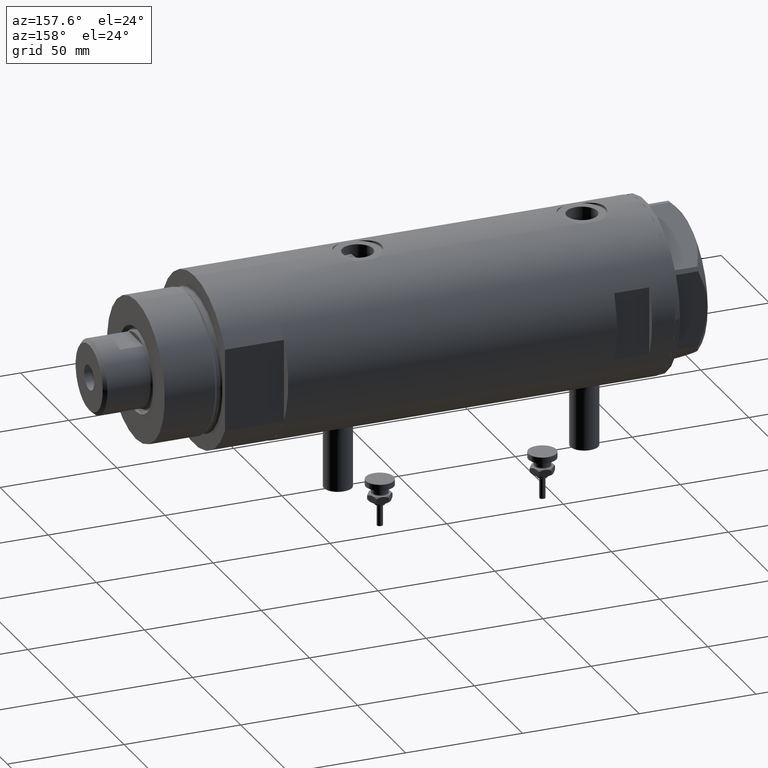
[diagram: clean part render]
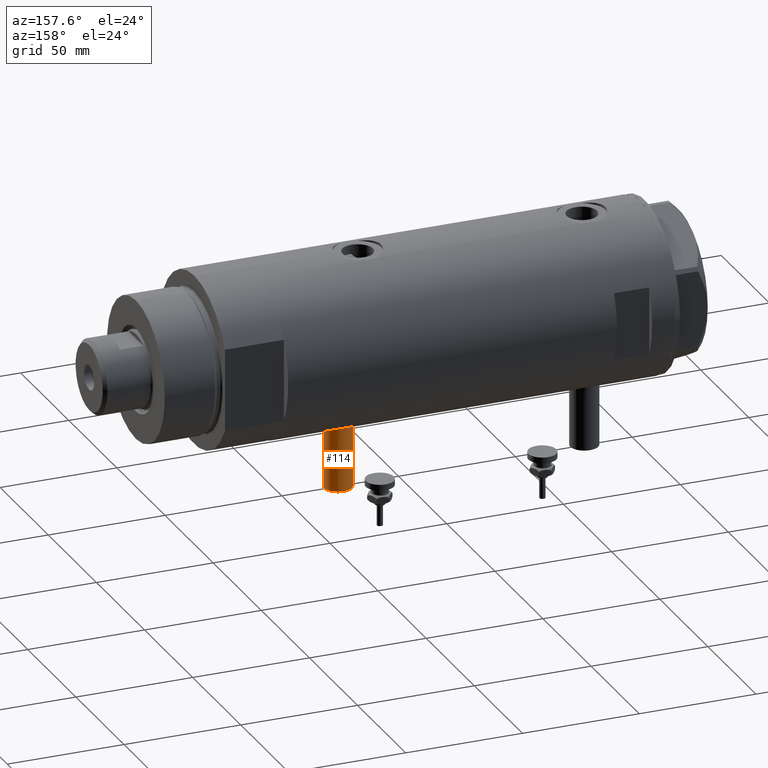
[diagram: same view with one face highlighted and labeled with its STEP entity id]
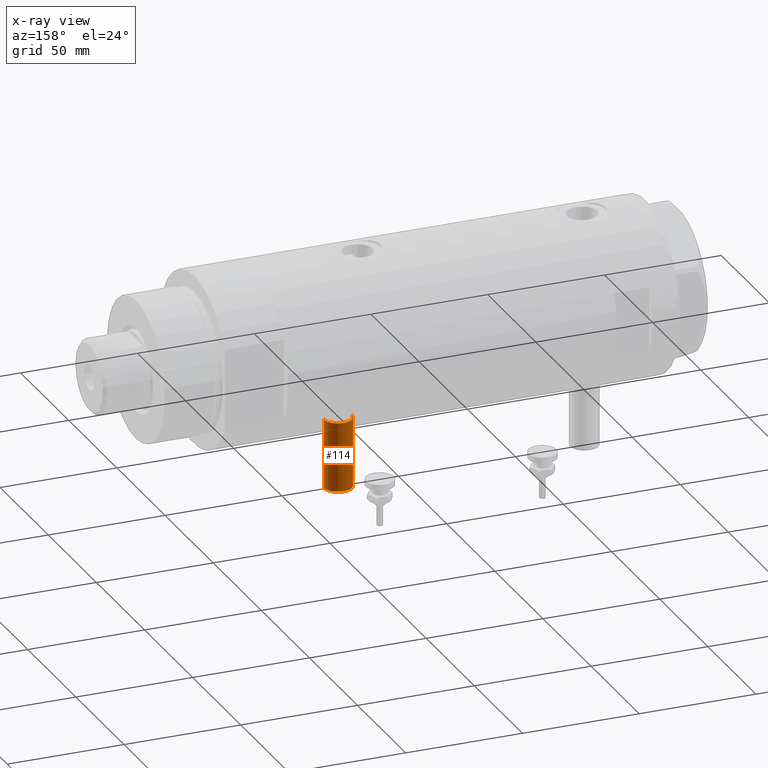
[diagram: x-ray of the same camera — body ghosted, the highlighted face saturated]
A machine part, auxiliary view. The second image highlights one B-rep face of the part: STEP entity #114.
The next image is the same camera in x-ray: the body ghosted, the highlighted face saturated — about 0% of this face is hidden behind the body in this view.
In plain terms, the highlighted cylindrical surface (edge-blend (fillet) strip) has radius 6 mm, axis along (0, 0, 1).
Its self-contained STEP definition (entity closure, byte-faithful):
#114 = ADVANCED_FACE ( 'NONE', ( #1249 ), #2164, .T. ) ;
#269 = DIRECTION ( 'NONE',  ( 1.000000000000000000, -0.000000000000000000, -0.000000000000000000 ) ) ;
#521 = VERTEX_POINT ( 'NONE', #3669 ) ;
#569 = VERTEX_POINT ( 'NONE', #2215 ) ;
#652 = EDGE_CURVE ( 'NONE', #521, #2504, #2677, .T. ) ;
#656 = AXIS2_PLACEMENT_3D ( 'NONE', #5538, #3626, #3236 ) ;
#780 = DIRECTION ( 'NONE',  ( 0.000000000000000000, 0.000000000000000000, -1.000000000000000000 ) ) ;
#962 = VECTOR ( 'NONE', #2636, 1000.000000000000000 ) ;
#1125 = EDGE_CURVE ( 'NONE', #5247, #569, #2112, .T. ) ;
#1249 = FACE_OUTER_BOUND ( 'NONE', #3603, .T. ) ;
#1293 = LINE ( 'NONE', #4450, #3193 ) ;
#2059 = DIRECTION ( 'NONE',  ( -1.000000000000000000, 0.000000000000000000, 0.000000000000000000 ) ) ;
#2112 = CIRCLE ( 'NONE', #3548, 6.000000000000005329 ) ;
#2164 = CYLINDRICAL_SURFACE ( 'NONE', #3938, 6.000000000000005329 ) ;
#2215 = CARTESIAN_POINT ( 'NONE',  ( -35.29999999999999716, 0.000000000000000000, -52.60000000000000853 ) ) ;
#2504 = VERTEX_POINT ( 'NONE', #4484 ) ;
#2506 = CARTESIAN_POINT ( 'NONE',  ( -35.29999999999999716, 0.000000000000000000, -46.60000000000000142 ) ) ;
#2636 = DIRECTION ( 'NONE',  ( 1.000000000000000000, -0.000000000000000000, -0.000000000000000000 ) ) ;
#2669 = CARTESIAN_POINT ( 'NONE',  ( -65.00000000000000000, 0.000000000000000000, -46.60000000000000142 ) ) ;
#2677 = CIRCLE ( 'NONE', #656, 6.000000000000005329 ) ;
#2831 = ORIENTED_EDGE ( 'NONE', *, *, #652, .F. ) ;
#3101 = CARTESIAN_POINT ( 'NONE',  ( -65.00000000000000000, 0.000000000000000000, -52.60000000000000853 ) ) ;
#3193 = VECTOR ( 'NONE', #4071, 1000.000000000000000 ) ;
#3236 = DIRECTION ( 'NONE',  ( 0.000000000000000000, 0.000000000000000000, 1.000000000000000000 ) ) ;
#3548 = AXIS2_PLACEMENT_3D ( 'NONE', #2506, #2059, #3905 ) ;
#3603 = EDGE_LOOP ( 'NONE', ( #2831, #5382, #4932, #5656 ) ) ;
#3626 = DIRECTION ( 'NONE',  ( -1.000000000000000000, 0.000000000000000000, 0.000000000000000000 ) ) ;
#3669 = CARTESIAN_POINT ( 'NONE',  ( -65.00000000000000000, 7.347880794884119736E-16, -40.59999999999999432 ) ) ;
#3810 = EDGE_CURVE ( 'NONE', #2504, #569, #4552, .T. ) ;
#3905 = DIRECTION ( 'NONE',  ( 0.000000000000000000, 0.000000000000000000, 1.000000000000000000 ) ) ;
#3938 = AXIS2_PLACEMENT_3D ( 'NONE', #2669, #269, #780 ) ;
#4071 = DIRECTION ( 'NONE',  ( 1.000000000000000000, -0.000000000000000000, -0.000000000000000000 ) ) ;
#4170 = EDGE_CURVE ( 'NONE', #521, #5247, #1293, .T. ) ;
#4450 = CARTESIAN_POINT ( 'NONE',  ( -65.00000000000000000, 7.347880794884122694E-16, -40.59999999999999432 ) ) ;
#4452 = CARTESIAN_POINT ( 'NONE',  ( -35.29999999999999716, 7.347880794884119736E-16, -40.59999999999999432 ) ) ;
#4484 = CARTESIAN_POINT ( 'NONE',  ( -65.00000000000000000, 0.000000000000000000, -52.60000000000000853 ) ) ;
#4552 = LINE ( 'NONE', #3101, #962 ) ;
#4932 = ORIENTED_EDGE ( 'NONE', *, *, #1125, .T. ) ;
#5247 = VERTEX_POINT ( 'NONE', #4452 ) ;
#5382 = ORIENTED_EDGE ( 'NONE', *, *, #4170, .T. ) ;
#5538 = CARTESIAN_POINT ( 'NONE',  ( -65.00000000000000000, 0.000000000000000000, -46.60000000000000142 ) ) ;
#5656 = ORIENTED_EDGE ( 'NONE', *, *, #3810, .F. ) ;